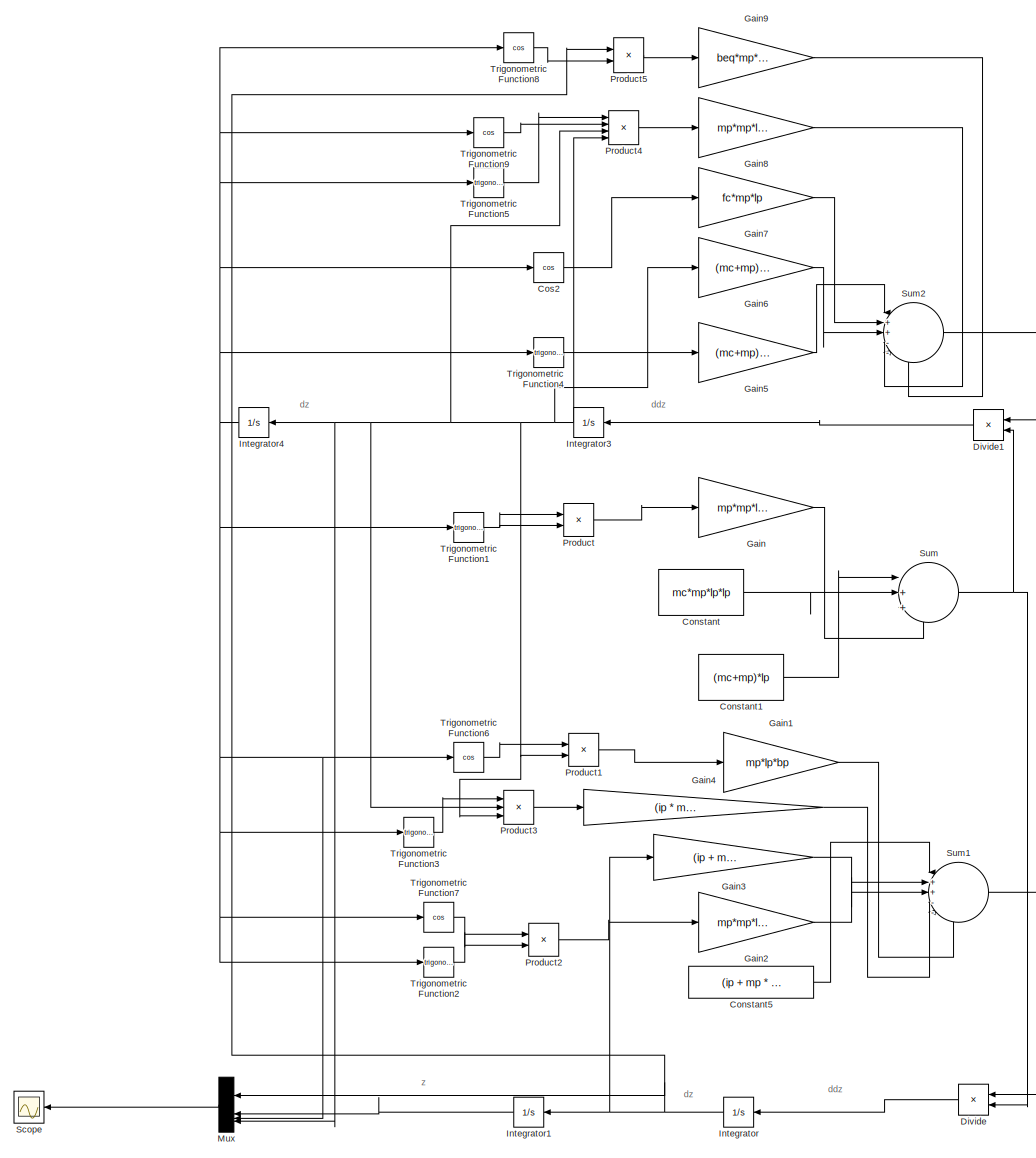
[diagram: root canvas - part 1/1, most of the canvas]
MODEL slx_76781da04b42
KIND model
CONFIG AbsTol = auto
CONFIG EnableMultiTasking = off
CONFIG FixedStep = auto
CONFIG InitFcn = ip=0.0079;\nmc=0.7031;\nlp=0.3302;\nmp=0.23;\nfc= 0;\nbeq=4.3;\ng=9.81;\nbp=0.0024;
CONFIG MaxStep = auto
CONFIG MinStep = auto
CONFIG RelTol = 1e-3
CONFIG SampleTimeConstraint = Unconstrained
CONFIG SolverName = VariableStepAuto
CONFIG StartTime = 0.0
CONFIG StopTime = 20
BLOCK [Constant] Constant
  Value = mc*mp*lp*lp
BLOCK [Constant] Constant1
  Value = (mc+mp)*lp
BLOCK [Constant] Constant5
  Value = (ip + mp * lp*lp) * fc
BLOCK [Trigonometry] Cos2
  Operator = cos
BLOCK [Product] Divide
  Inputs = */
  NameLocation = top
BLOCK [Product] Divide1
  Inputs = */
  NameLocation = top
BLOCK [Gain] Gain
  Gain = mp*mp*lp*lp
BLOCK [Gain] Gain1
  Gain = mp*lp*bp
BLOCK [Gain] Gain2
  Gain = mp*mp*lp* lp * g
BLOCK [Gain] Gain3
  Gain = (ip + mp * lp*lp) * beq
BLOCK [Gain] Gain4
  Gain = (ip * mp * lp - mp*mp* lp*lp*lp)
BLOCK [Gain] Gain5
  Gain = (mc+mp)*mp*g*lp
BLOCK [Gain] Gain6
  Gain = (mc+mp)*bp
BLOCK [Gain] Gain7
  Gain = fc*mp*lp
BLOCK [Gain] Gain8
  Gain = mp*mp*lp*lp
BLOCK [Gain] Gain9
  Gain = beq*mp*lp
BLOCK [Integrator] Integrator
  NameLocation = top
BLOCK [Integrator] Integrator1
  NameLocation = top
BLOCK [Integrator] Integrator3
  NameLocation = top
BLOCK [Integrator] Integrator4
  InitialCondition = 3.14/180
  NameLocation = top
BLOCK [Mux] Mux
  DisplayOption = bar
  NameLocation = top
BLOCK [Product] Product
BLOCK [Product] Product1
BLOCK [Product] Product2
BLOCK [Product] Product3
  Inputs = 3
BLOCK [Product] Product4
  Inputs = 4
BLOCK [Product] Product5
BLOCK [Scope] Scope
  Floating = off
  NameLocation = top
  NumInputPorts = 1
  ScopeSpecificationString = Simulink.scopes.TimeScopeBlockCfg('CurrentConfiguration', extmgr.ConfigurationSet(extmgr.Configuration('Core','General UI',true),extmgr.Configuration('Core','Source UI',true),extmgr.Configuration('Sources','WiredSimulink',true),extmgr.Configuration('Visuals','Time Domain',true,'SerializedDisplays',{struct('MinYLimReal','-4.03334','MaxYLimReal','7.27743','YLabelReal','','MinYLimMag','0.00000','MaxY...<+1494ch>
BLOCK [Sum] Sum
  Inputs = |+++
BLOCK [Sum] Sum1
  Inputs = |++---
BLOCK [Sum] Sum2
  Inputs = |++---
BLOCK [Trigonometry] Trigonometric Function1
BLOCK [Trigonometry] Trigonometric Function2
BLOCK [Trigonometry] Trigonometric Function3
BLOCK [Trigonometry] Trigonometric Function4
BLOCK [Trigonometry] Trigonometric Function5
BLOCK [Trigonometry] Trigonometric Function6
  Operator = cos
BLOCK [Trigonometry] Trigonometric Function7
  Operator = cos
BLOCK [Trigonometry] Trigonometric Function8
  Operator = cos
BLOCK [Trigonometry] Trigonometric Function9
  Operator = cos
ANNOTATION (root): ddz
ANNOTATION (root): dz
ANNOTATION (root): z
LINE Constant1:1 -> Sum:1
LINE Constant5:1 -> Sum1:1
LINE Constant:1 -> Sum:2
LINE Cos2:1 -> Gain7:1
LINE Divide1:1 -> Integrator3:1
LINE Divide:1 -> Integrator:1
LINE Gain1:1 -> Sum1:5
LINE Gain2:1 -> Sum1:2
LINE Gain3:1 -> Sum1:3
LINE Gain4:1 -> Sum1:4
LINE Gain5:1 -> Sum2:1
LINE Gain6:1 -> Sum2:3
LINE Gain7:1 -> Sum2:2
LINE Gain8:1 -> Sum2:4
LINE Gain9:1 -> Sum2:5
LINE Gain:1 -> Sum:3
LINE Integrator1:1 -> Mux:2
NET Integrator3:1 -> Gain6:1, Integrator4:1, Mux:4, Product1:2, Product3:2, Product3:3, Product4:3, Product4:4
NET Integrator4:1 -> Cos2:1, Mux:3, Trigonometric Function1:1, Trigonometric Function2:1, Trigonometric Function3:1, Trigonometric Function4:1, Trigonometric Function5:1, Trigonometric Function6:1, Trigonometric Function7:1, Trigonometric Function8:1, Trigonometric Function9:1
NET Integrator:1 -> Gain3:1, Integrator1:1, Mux:1, Product5:1
LINE Mux:1 -> Scope:1
LINE Product1:1 -> Gain1:1
LINE Product2:1 -> Gain2:1
LINE Product3:1 -> Gain4:1
LINE Product4:1 -> Gain8:1
LINE Product5:1 -> Gain9:1
LINE Product:1 -> Gain:1
LINE Sum1:1 -> Divide:1
LINE Sum2:1 -> Divide1:1
NET Sum:1 -> Divide1:2, Divide:2
NET Trigonometric Function1:1 -> Product:1, Product:2
LINE Trigonometric Function2:1 -> Product2:1
LINE Trigonometric Function3:1 -> Product3:1
LINE Trigonometric Function4:1 -> Gain5:1
LINE Trigonometric Function5:1 -> Product4:1
LINE Trigonometric Function6:1 -> Product1:1
LINE Trigonometric Function7:1 -> Product2:2
LINE Trigonometric Function8:1 -> Product5:2
LINE Trigonometric Function9:1 -> Product4:2
note: NET lines group one-source signal fan-out (src -> all destinations, sorted); 1:1 wires keep LINE
